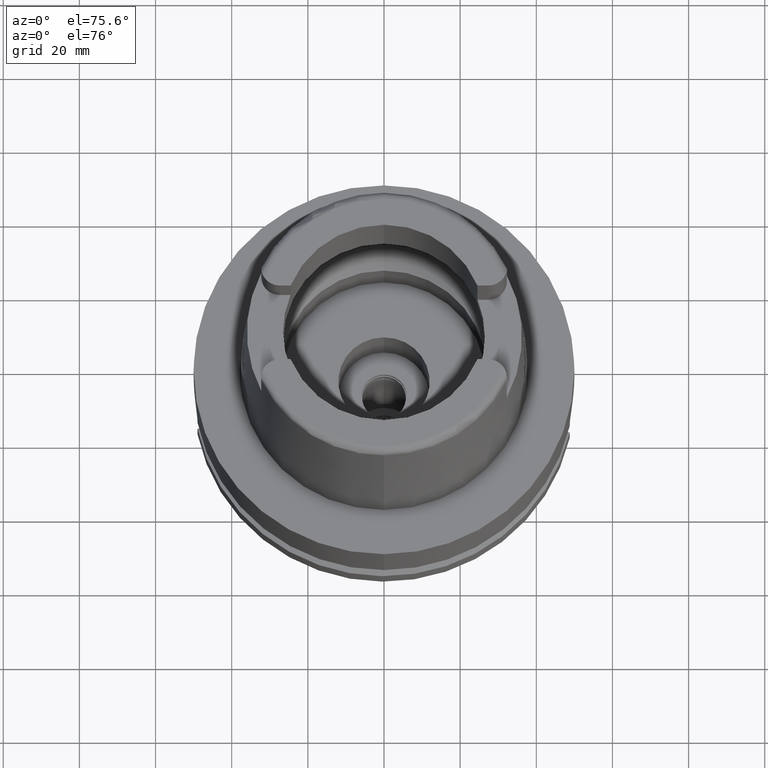
[diagram: clean part render]
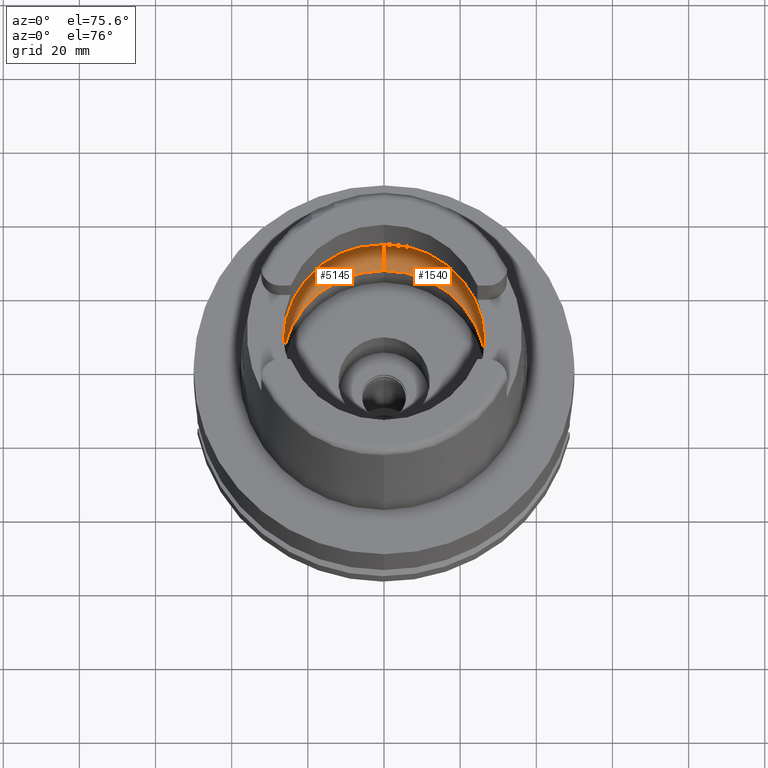
[diagram: same view with one multi-face feature highlighted, each face labeled with its STEP entity id]
A machine part, auxiliary view. The highlighted faces form ONE feature: a constant-radius fillet chain: 2 tangent blend faces with common blend radius 12 mm. The faces share edges in the B-rep.
Their STEP definitions:
[1] entity #1540 (Torus):
#18 = ORIENTED_EDGE ( 'NONE', *, *, #1472, .F. ) ;
#115 = VERTEX_POINT ( 'NONE', #1633 ) ;
#168 = DIRECTION ( 'NONE',  ( 0.0000000000000000000, 0.0000000000000000000, 1.000000000000000000 ) ) ;
#196 = EDGE_CURVE ( 'NONE', #3985, #3930, #1327, .T. ) ;
#356 = DIRECTION ( 'NONE',  ( 0.9971171061384295209, -0.07587803796965221503, 0.0000000000000000000 ) ) ;
#550 = CARTESIAN_POINT ( 'NONE',  ( 0.0000000000000000000, 0.0000000000000000000, 9.496624327025999790 ) ) ;
#564 = CARTESIAN_POINT ( 'NONE',  ( 0.0000000000000000000, 0.0000000000000000000, 0.04993178413040000319 ) ) ;
#685 = CARTESIAN_POINT ( 'NONE',  ( 31.46287568614665986, 1.684656700008886121, 9.190219625026216477 ) ) ;
#709 = EDGE_CURVE ( 'NONE', #2457, #3006, #1696, .T. ) ;
#720 = DIRECTION ( 'NONE',  ( 0.0000000000000000000, 0.0000000000000000000, -1.000000000000000000 ) ) ;
#725 = ORIENTED_EDGE ( 'NONE', *, *, #3528, .F. ) ;
#767 = DIRECTION ( 'NONE',  ( 1.000000000000000000, 0.0000000000000000000, 0.0000000000000000000 ) ) ;
#1228 = CIRCLE ( 'NONE', #2655, 26.89999999999999858 ) ;
#1244 = ORIENTED_EDGE ( 'NONE', *, *, #3125, .F. ) ;
#1254 = CARTESIAN_POINT ( 'NONE',  ( 31.46287568614665986, -1.684656699965325632, 9.190219625007294724 ) ) ;
#1327 = CIRCLE ( 'NONE', #5296, 31.49999999999998934 ) ;
#1441 = DIRECTION ( 'NONE',  ( 0.0000000000000000000, -1.000000000000000000, 0.0000000000000000000 ) ) ;
#1459 = CARTESIAN_POINT ( 'NONE',  ( 0.0000000000000000000, -26.89999999999999858, 0.04993178413040000319 ) ) ;
#1472 = EDGE_CURVE ( 'NONE', #115, #3985, #2390, .T. ) ;
#1538 = CARTESIAN_POINT ( 'NONE',  ( 31.48971910754000447, 0.0000000000000000000, 9.000000000000000000 ) ) ;
#1540 = ADVANCED_FACE ( 'NONE', ( #5184 ), #3663, .F. ) ;
#1633 = CARTESIAN_POINT ( 'NONE',  ( 31.48971910754000447, 0.0000000000000000000, 9.000000000000000000 ) ) ;
#1638 = DIRECTION ( 'NONE',  ( -1.000000000000000000, 0.0000000000000000000, 0.0000000000000000000 ) ) ;
#1663 = CARTESIAN_POINT ( 'NONE',  ( 0.0000000000000000000, -19.50000000000000000, 9.496624327025999790 ) ) ;
#1664 = CIRCLE ( 'NONE', #2369, 31.50000000000000000 ) ;
#1696 = CIRCLE ( 'NONE', #4865, 11.99999999999999822 ) ;
#1717 = CARTESIAN_POINT ( 'NONE',  ( 31.48971910754000447, 0.0000000000000000000, 9.000000000000000000 ) ) ;
#1916 = VERTEX_POINT ( 'NONE', #1459 ) ;
#2062 = ORIENTED_EDGE ( 'NONE', *, *, #2942, .T. ) ;
#2142 = VERTEX_POINT ( 'NONE', #2964 ) ;
#2274 = CARTESIAN_POINT ( 'NONE',  ( 31.40918884336000616, 2.390158196043999705, 9.496624327025999790 ) ) ;
#2309 = CARTESIAN_POINT ( 'NONE',  ( 0.0000000000000000000, 26.89999999999999858, 0.04993178413040000319 ) ) ;
#2369 = AXIS2_PLACEMENT_3D ( 'NONE', #2426, #720, #5073 ) ;
#2390 = B_SPLINE_CURVE_WITH_KNOTS ( 'NONE', 3,
 ( #1717, #5097, #1254, #3433 ),
 .UNSPECIFIED., .F., .F.,
 ( 4, 4 ),
 ( 0.0000000000000000000, 1.000000000000000000 ),
 .UNSPECIFIED. ) ;
#2407 = AXIS2_PLACEMENT_3D ( 'NONE', #1663, #1638, #3326 ) ;
#2426 = CARTESIAN_POINT ( 'NONE',  ( 0.0000000000000000000, 0.0000000000000000000, 9.496624327025999790 ) ) ;
#2457 = VERTEX_POINT ( 'NONE', #2309 ) ;
#2655 = AXIS2_PLACEMENT_3D ( 'NONE', #564, #168, #1441 ) ;
#2866 = DIRECTION ( 'NONE',  ( 0.0000000000000000000, 0.6166666666667049990, -0.7872243785746061429 ) ) ;
#2942 = EDGE_CURVE ( 'NONE', #1916, #3930, #4877, .T. ) ;
#2964 = CARTESIAN_POINT ( 'NONE',  ( 31.40918884336000616, 2.390158196043999705, 9.496624327025999790 ) ) ;
#3006 = VERTEX_POINT ( 'NONE', #3704 ) ;
#3125 = EDGE_CURVE ( 'NONE', #2142, #115, #4958, .T. ) ;
#3326 = DIRECTION ( 'NONE',  ( 0.0000000000000000000, -0.6166666666667049990, -0.7872243785746061429 ) ) ;
#3341 = ORIENTED_EDGE ( 'NONE', *, *, #196, .F. ) ;
#3433 = CARTESIAN_POINT ( 'NONE',  ( 31.40918884336000616, -2.390158196043999705, 9.496624327025999790 ) ) ;
#3528 = EDGE_CURVE ( 'NONE', #3006, #2142, #1664, .T. ) ;
#3663 = TOROIDAL_SURFACE ( 'NONE', #4031, 19.50000000000000000, 12.00000000000000000 ) ;
#3704 = CARTESIAN_POINT ( 'NONE',  ( 0.0000000000000000000, 31.50000000000000000, 9.496624327025999790 ) ) ;
#3723 = CARTESIAN_POINT ( 'NONE',  ( 0.0000000000000000000, -31.50000000000000000, 9.496624327025999790 ) ) ;
#3805 = EDGE_LOOP ( 'NONE', ( #1244, #725, #4510, #4005, #2062, #3341, #18 ) ) ;
#3930 = VERTEX_POINT ( 'NONE', #3723 ) ;
#3938 = DIRECTION ( 'NONE',  ( 0.0000000000000000000, 0.0000000000000000000, 1.000000000000000000 ) ) ;
#3985 = VERTEX_POINT ( 'NONE', #4550 ) ;
#4005 = ORIENTED_EDGE ( 'NONE', *, *, #5552, .F. ) ;
#4031 = AXIS2_PLACEMENT_3D ( 'NONE', #550, #3938, #4765 ) ;
#4151 = CARTESIAN_POINT ( 'NONE',  ( 31.48971910753999026, 0.8697454017787721314, 9.000000000000001776 ) ) ;
#4214 = CARTESIAN_POINT ( 'NONE',  ( 0.0000000000000000000, 0.0000000000000000000, 9.496624327025999790 ) ) ;
#4510 = ORIENTED_EDGE ( 'NONE', *, *, #709, .F. ) ;
#4550 = CARTESIAN_POINT ( 'NONE',  ( 31.40918884336000616, -2.390158196043999705, 9.496624327025999790 ) ) ;
#4620 = DIRECTION ( 'NONE',  ( 0.0000000000000000000, 0.0000000000000000000, -1.000000000000000000 ) ) ;
#4765 = DIRECTION ( 'NONE',  ( 0.0000000000000000000, 1.000000000000000000, 0.0000000000000000000 ) ) ;
#4865 = AXIS2_PLACEMENT_3D ( 'NONE', #5462, #767, #2866 ) ;
#4877 = CIRCLE ( 'NONE', #2407, 11.99999999999999822 ) ;
#4958 = B_SPLINE_CURVE_WITH_KNOTS ( 'NONE', 3,
 ( #2274, #685, #4151, #1538 ),
 .UNSPECIFIED., .F., .F.,
 ( 4, 4 ),
 ( 0.0000000000000000000, 1.000000000000000000 ),
 .UNSPECIFIED. ) ;
#5073 = DIRECTION ( 'NONE',  ( 0.0000000000000000000, 1.000000000000000000, 0.0000000000000000000 ) ) ;
#5097 = CARTESIAN_POINT ( 'NONE',  ( 31.48971910753999026, -0.8697454017312684638, 8.999999999999998224 ) ) ;
#5184 = FACE_OUTER_BOUND ( 'NONE', #3805, .T. ) ;
#5296 = AXIS2_PLACEMENT_3D ( 'NONE', #4214, #4620, #356 ) ;
#5462 = CARTESIAN_POINT ( 'NONE',  ( 0.0000000000000000000, 19.50000000000000000, 9.496624327025999790 ) ) ;
#5552 = EDGE_CURVE ( 'NONE', #1916, #2457, #1228, .T. ) ;
[2] entity #5145 (Torus):
#71 = CARTESIAN_POINT ( 'NONE',  ( -31.48971910754000447, 0.0000000000000000000, 9.000000000000000000 ) ) ;
#236 = DIRECTION ( 'NONE',  ( 0.0000000000000000000, 0.0000000000000000000, -1.000000000000000000 ) ) ;
#282 = B_SPLINE_CURVE_WITH_KNOTS ( 'NONE', 3,
 ( #71, #4888, #3148, #1031 ),
 .UNSPECIFIED., .F., .F.,
 ( 4, 4 ),
 ( 0.0000000000000000000, 1.000000000000000000 ),
 .UNSPECIFIED. ) ;
#283 = CARTESIAN_POINT ( 'NONE',  ( -31.48971910754000447, -0.8697454017997489073, 8.999999999999998224 ) ) ;
#380 = ORIENTED_EDGE ( 'NONE', *, *, #2942, .F. ) ;
#687 = B_SPLINE_CURVE_WITH_KNOTS ( 'NONE', 3,
 ( #3334, #1927, #283, #734 ),
 .UNSPECIFIED., .F., .F.,
 ( 4, 4 ),
 ( 0.0000000000000000000, 1.000000000000000000 ),
 .UNSPECIFIED. ) ;
#709 = EDGE_CURVE ( 'NONE', #2457, #3006, #1696, .T. ) ;
#734 = CARTESIAN_POINT ( 'NONE',  ( -31.48971910754000447, 0.0000000000000000000, 9.000000000000000000 ) ) ;
#767 = DIRECTION ( 'NONE',  ( 1.000000000000000000, 0.0000000000000000000, 0.0000000000000000000 ) ) ;
#815 = ORIENTED_EDGE ( 'NONE', *, *, #3068, .F. ) ;
#966 = CIRCLE ( 'NONE', #4947, 26.89999999999999858 ) ;
#1031 = CARTESIAN_POINT ( 'NONE',  ( -31.40918884336000616, 2.390158196043999705, 9.496624327025999790 ) ) ;
#1220 = AXIS2_PLACEMENT_3D ( 'NONE', #4181, #4563, #4681 ) ;
#1459 = CARTESIAN_POINT ( 'NONE',  ( 0.0000000000000000000, -26.89999999999999858, 0.04993178413040000319 ) ) ;
#1562 = CARTESIAN_POINT ( 'NONE',  ( -31.48971910754000447, 0.0000000000000000000, 9.000000000000000000 ) ) ;
#1638 = DIRECTION ( 'NONE',  ( -1.000000000000000000, 0.0000000000000000000, 0.0000000000000000000 ) ) ;
#1663 = CARTESIAN_POINT ( 'NONE',  ( 0.0000000000000000000, -19.50000000000000000, 9.496624327025999790 ) ) ;
#1692 = ORIENTED_EDGE ( 'NONE', *, *, #4787, .F. ) ;
#1696 = CIRCLE ( 'NONE', #4865, 11.99999999999999822 ) ;
#1763 = AXIS2_PLACEMENT_3D ( 'NONE', #3311, #236, #4590 ) ;
#1790 = ORIENTED_EDGE ( 'NONE', *, *, #3763, .F. ) ;
#1864 = TOROIDAL_SURFACE ( 'NONE', #5020, 19.50000000000000000, 12.00000000000000000 ) ;
#1916 = VERTEX_POINT ( 'NONE', #1459 ) ;
#1927 = CARTESIAN_POINT ( 'NONE',  ( -31.46287568614665986, -1.684656700028137832, 9.190219625034576012 ) ) ;
#1972 = ORIENTED_EDGE ( 'NONE', *, *, #4076, .F. ) ;
#2061 = VERTEX_POINT ( 'NONE', #1562 ) ;
#2309 = CARTESIAN_POINT ( 'NONE',  ( 0.0000000000000000000, 26.89999999999999858, 0.04993178413040000319 ) ) ;
#2407 = AXIS2_PLACEMENT_3D ( 'NONE', #1663, #1638, #3326 ) ;
#2457 = VERTEX_POINT ( 'NONE', #2309 ) ;
#2866 = DIRECTION ( 'NONE',  ( 0.0000000000000000000, 0.6166666666667049990, -0.7872243785746061429 ) ) ;
#2942 = EDGE_CURVE ( 'NONE', #1916, #3930, #4877, .T. ) ;
#2978 = CARTESIAN_POINT ( 'NONE',  ( -31.40918884336000616, 2.390158196043999705, 9.496624327025999790 ) ) ;
#3006 = VERTEX_POINT ( 'NONE', #3704 ) ;
#3068 = EDGE_CURVE ( 'NONE', #3930, #3119, #4175, .T. ) ;
#3119 = VERTEX_POINT ( 'NONE', #5415 ) ;
#3148 = CARTESIAN_POINT ( 'NONE',  ( -31.46287568614665986, 1.684656699916923683, 9.190219624986275093 ) ) ;
#3172 = DIRECTION ( 'NONE',  ( 0.0000000000000000000, 0.0000000000000000000, 1.000000000000000000 ) ) ;
#3256 = ORIENTED_EDGE ( 'NONE', *, *, #709, .T. ) ;
#3311 = CARTESIAN_POINT ( 'NONE',  ( 0.0000000000000000000, 0.0000000000000000000, 9.496624327025999790 ) ) ;
#3326 = DIRECTION ( 'NONE',  ( 0.0000000000000000000, -0.6166666666667049990, -0.7872243785746061429 ) ) ;
#3334 = CARTESIAN_POINT ( 'NONE',  ( -31.40918884336000616, -2.390158196043999705, 9.496624327025999790 ) ) ;
#3704 = CARTESIAN_POINT ( 'NONE',  ( 0.0000000000000000000, 31.50000000000000000, 9.496624327025999790 ) ) ;
#3723 = CARTESIAN_POINT ( 'NONE',  ( 0.0000000000000000000, -31.50000000000000000, 9.496624327025999790 ) ) ;
#3763 = EDGE_CURVE ( 'NONE', #2061, #4692, #282, .T. ) ;
#3904 = EDGE_LOOP ( 'NONE', ( #815, #380, #4602, #3256, #1692, #1790, #1972 ) ) ;
#3924 = DIRECTION ( 'NONE',  ( 0.0000000000000000000, 0.0000000000000000000, 1.000000000000000000 ) ) ;
#3930 = VERTEX_POINT ( 'NONE', #3723 ) ;
#3995 = CARTESIAN_POINT ( 'NONE',  ( 0.0000000000000000000, 0.0000000000000000000, 9.496624327025999790 ) ) ;
#4022 = FACE_OUTER_BOUND ( 'NONE', #3904, .T. ) ;
#4076 = EDGE_CURVE ( 'NONE', #3119, #2061, #687, .T. ) ;
#4175 = CIRCLE ( 'NONE', #1763, 31.50000000000000000 ) ;
#4181 = CARTESIAN_POINT ( 'NONE',  ( 0.0000000000000000000, 0.0000000000000000000, 9.496624327025999790 ) ) ;
#4463 = CIRCLE ( 'NONE', #1220, 31.49999999999998934 ) ;
#4467 = DIRECTION ( 'NONE',  ( 0.0000000000000000000, 1.000000000000000000, 0.0000000000000000000 ) ) ;
#4563 = DIRECTION ( 'NONE',  ( 0.0000000000000000000, 0.0000000000000000000, -1.000000000000000000 ) ) ;
#4590 = DIRECTION ( 'NONE',  ( 0.0000000000000000000, -1.000000000000000000, 0.0000000000000000000 ) ) ;
#4602 = ORIENTED_EDGE ( 'NONE', *, *, #5557, .F. ) ;
#4681 = DIRECTION ( 'NONE',  ( -0.9971171061384295209, 0.07587803796965221503, 0.0000000000000000000 ) ) ;
#4692 = VERTEX_POINT ( 'NONE', #2978 ) ;
#4787 = EDGE_CURVE ( 'NONE', #4692, #3006, #4463, .T. ) ;
#4865 = AXIS2_PLACEMENT_3D ( 'NONE', #5462, #767, #2866 ) ;
#4877 = CIRCLE ( 'NONE', #2407, 11.99999999999999822 ) ;
#4888 = CARTESIAN_POINT ( 'NONE',  ( -31.48971910754000447, 0.8697454016785111097, 9.000000000000001776 ) ) ;
#4947 = AXIS2_PLACEMENT_3D ( 'NONE', #5280, #3924, #5316 ) ;
#5020 = AXIS2_PLACEMENT_3D ( 'NONE', #3995, #3172, #4467 ) ;
#5145 = ADVANCED_FACE ( 'NONE', ( #4022 ), #1864, .F. ) ;
#5280 = CARTESIAN_POINT ( 'NONE',  ( 0.0000000000000000000, 0.0000000000000000000, 0.04993178413040000319 ) ) ;
#5316 = DIRECTION ( 'NONE',  ( 0.0000000000000000000, 1.000000000000000000, 0.0000000000000000000 ) ) ;
#5415 = CARTESIAN_POINT ( 'NONE',  ( -31.40918884336000616, -2.390158196043999705, 9.496624327025999790 ) ) ;
#5462 = CARTESIAN_POINT ( 'NONE',  ( 0.0000000000000000000, 19.50000000000000000, 9.496624327025999790 ) ) ;
#5557 = EDGE_CURVE ( 'NONE', #2457, #1916, #966, .T. ) ;